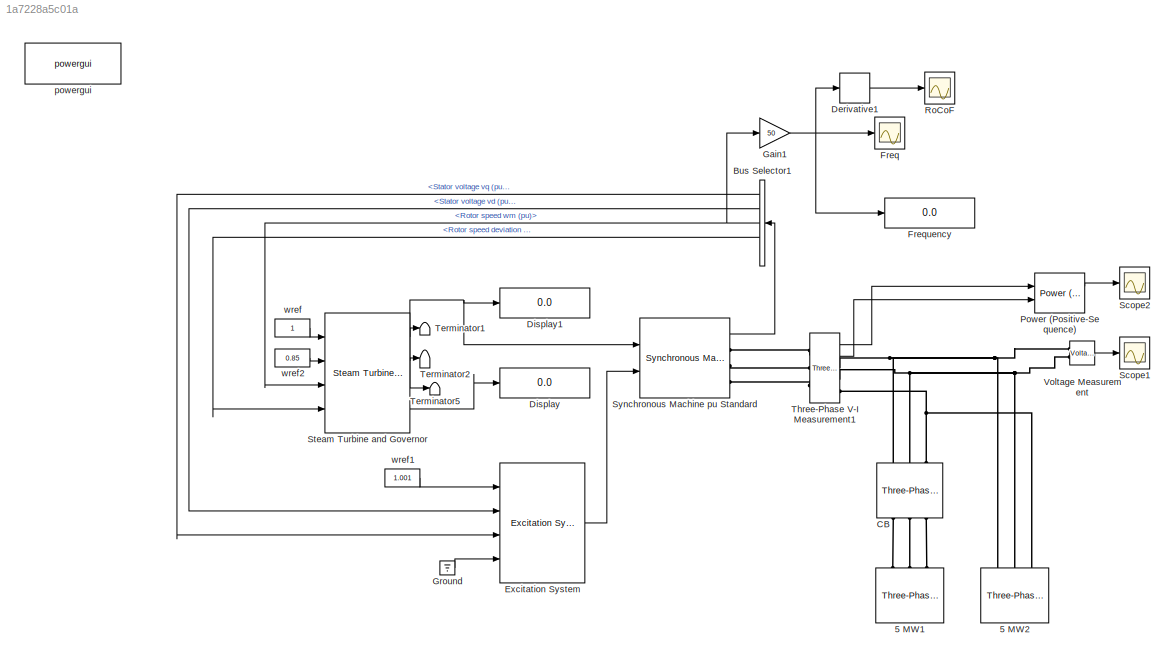
MODEL slx_1a7228a5c01a
KIND model
CONFIG AbsTol = auto
CONFIG FixedStep = auto
CONFIG MaxStep = auto
CONFIG MinStep = auto
CONFIG RelTol = 1e-3
CONFIG SampleTimeConstraint = Unconstrained
CONFIG Solver = VariableStepAuto
CONFIG SolverMode = Auto
CONFIG SolverName = VariableStepAuto
CONFIG StartTime = 0.0
CONFIG StopTime = 30
BLOCK [Reference] 5 MW1  REF=powerlib/Elements/Three-Phase
Parallel RLC Load
  AttributesFormatString = \n
  Ports = [0, 0, 0, 0, 0, 3]
  SourceBlock = powerlib/Elements/Three-Phase\nParallel RLC Load
  SourceType = Three-Phase Parallel RLC Load
BLOCK [Reference] 5 MW2  REF=powerlib/Elements/Three-Phase
Parallel RLC Load
  AttributesFormatString = \n
  Ports = [0, 0, 0, 0, 0, 3]
  SourceBlock = powerlib/Elements/Three-Phase\nParallel RLC Load
  SourceType = Three-Phase Parallel RLC Load
BLOCK [BusSelector] Bus Selector1
  OutputSignals = dq0 components.Stator voltage  vq (pu),dq0 components.Stator voltage  vd (pu),Mechanical.Rotor speed  wm  (pu),Mechanical.Rotor speed deviation  dw (pu),Output active power   Peo (pu)
  Ports = [1, 5]
BLOCK [Reference] CB  REF=powerlib/Elements/Three-Phase Breaker
  Ports = [0, 0, 0, 0, 0, 3, 3]
  SourceBlock = powerlib/Elements/Three-Phase Breaker
  SourceType = Three-Phase Breaker
BLOCK [Derivative] Derivative1
BLOCK [Display] Display
  Decimation = 1
  Ports = [1]
BLOCK [Display] Display1
  Decimation = 1
  Ports = [1]
BLOCK [Reference] Excitation System  REF=sps_avr/Excitation System
  Ports = [4, 1]
  SourceBlock = sps_avr/Excitation System
  SourceType = Excitation System
BLOCK [Scope] Freq
  Ports = [1]
  ScopeSpecificationString = Simulink.scopes.TimeScopeBlockCfg('CurrentConfiguration', extmgr.ConfigurationSet(extmgr.Configuration('Core','General UI',true),extmgr.Configuration('Core','Source UI',true),extmgr.Configuration('Sources','WiredSimulink',true,'DataLoggingVariableName','ScopeData1'),extmgr.Configuration('Visuals','Time Domain',true,'SerializedDisplays',{struct('MinYLimReal','48.4862','MaxYLimReal','50.16873','YLab...<+1467ch>
BLOCK [Display] Frequency
  Decimation = 1
  Ports = [1]
BLOCK [Gain] Gain1
  Gain = 50
  OutDataTypeStr = Inherit: Inherit via internal rule
  ParamDataTypeStr = Inherit: Inherit via internal rule
  SaturateOnIntegerOverflow = off
BLOCK [Ground] Ground
BLOCK [Reference] Power (Positive-Sequence)  REF=powerlib_meascontrol/Measurements/Power
(Positive-Sequence)
  Ports = [2, 2]
  SourceBlock = powerlib_meascontrol/Measurements/Power\n(Positive-Sequence)
  SourceType = Power (Positive-Sequence)
BLOCK [Scope] RoCoF
  Ports = [1]
  ScopeSpecificationString = Simulink.scopes.TimeScopeBlockCfg('CurrentConfiguration', extmgr.ConfigurationSet(extmgr.Configuration('Core','General UI',true),extmgr.Configuration('Core','Source UI',true),extmgr.Configuration('Sources','WiredSimulink',true,'DataLoggingVariableName','ScopeData3'),extmgr.Configuration('Visuals','Time Domain',true,'SerializedDisplays',{struct('MinYLimReal','-2.94156','MaxYLimReal','0.39121','YLab...<+1472ch>
BLOCK [Scope] Scope1
  Ports = [1]
  ScopeSpecificationString = Simulink.scopes.TimeScopeBlockCfg('CurrentConfiguration', extmgr.ConfigurationSet(extmgr.Configuration('Core','General UI',true),extmgr.Configuration('Core','Source UI',true),extmgr.Configuration('Sources','WiredSimulink',true),extmgr.Configuration('Visuals','Time Domain',true,'SerializedDisplays',{struct('MinYLimReal','970.81735','MaxYLimReal','978.22374','YLabelReal','','MinYLimMag','970.81735',...<+1397ch>
BLOCK [Scope] Scope2
  Ports = [1]
  ScopeSpecificationString = Simulink.scopes.TimeScopeBlockCfg('CurrentConfiguration', extmgr.ConfigurationSet(extmgr.Configuration('Core','General UI',true),extmgr.Configuration('Core','Source UI',true),extmgr.Configuration('Sources','WiredSimulink',true,'DataLoggingVariableName','ScopeData2'),extmgr.Configuration('Visuals','Time Domain',true,'SerializedDisplays',{struct('MinYLimReal','-10690268.94702','MaxYLimReal','9621242...<+1511ch>
BLOCK [Reference] Steam Turbine and Governor  REF=powerlib/Machines/Steam Turbine
and Governor
  Ports = [4, 4]
  SourceBlock = powerlib/Machines/Steam Turbine\nand Governor
  SourceType = Steam Turbine and Governor
BLOCK [Reference] Synchronous Machine pu Standard  REF=powerlib/Machines/Synchronous Machine
pu Standard
  Ports = [2, 1, 0, 0, 0, 0, 3]
  SourceBlock = powerlib/Machines/Synchronous Machine\npu Standard
  SourceType = Synchronous Machine
BLOCK [Terminator] Terminator1
BLOCK [Terminator] Terminator2
BLOCK [Terminator] Terminator5
BLOCK [Reference] Three-Phase V-I Measurement1  REF=powerlib/Measurements/Three-Phase
V-I Measurement
  Ports = [0, 2, 0, 0, 0, 3, 3]
  SourceBlock = powerlib/Measurements/Three-Phase\nV-I Measurement
  SourceType = Three-Phase VI Measurement
BLOCK [Reference] Voltage Measurement  REF=powerlib/Measurements/Voltage Measurement
  Ports = [0, 1, 0, 0, 0, 2]
  SourceBlock = powerlib/Measurements/Voltage Measurement
  SourceType = Voltage Measurement
  UserDataPersistent = on
BLOCK [Reference] powergui  REF=powerlib/powergui
  Ports = []
  Priority = 2
  SourceBlock = powerlib/powergui
  SourceType = PSB option menu block
BLOCK [Constant] wref
BLOCK [Constant] wref1
  Value = 1.001
BLOCK [Constant] wref2
  Value = 0.85
LINE Bus Selector1:1 -> Excitation System:3
LINE Bus Selector1:2 -> Excitation System:2
NET Bus Selector1:3 -> Gain1:1, Steam Turbine and Governor:3
LINE Bus Selector1:4 -> Steam Turbine and Governor:4
LINE Derivative1:1 -> RoCoF:1
LINE Excitation System:1 -> Synchronous Machine pu Standard:2
NET Gain1:1 -> Derivative1:1, Freq:1, Frequency:1
LINE Ground:1 -> Excitation System:4
LINE Power (Positive-Sequence):1 -> Scope2:1
LINE Steam Turbine and Governor:1 -> Terminator1:1
LINE Steam Turbine and Governor:2 -> Terminator2:1
NET Steam Turbine and Governor:3 -> Display1:1, Synchronous Machine pu Standard:1, Terminator5:1
LINE Steam Turbine and Governor:4 -> Display:1
LINE Synchronous Machine pu Standard:1 -> Bus Selector1:1
LINE Three-Phase V-I Measurement1:1 -> Power (Positive-Sequence):1
LINE Three-Phase V-I Measurement1:2 -> Power (Positive-Sequence):2
LINE Voltage Measurement:1 -> Scope1:1
LINE wref1:1 -> Excitation System:1
LINE wref2:1 -> Steam Turbine and Governor:2
LINE wref:1 -> Steam Turbine and Governor:1
PLINE 5 MW1:LConn1 -- CB:LConn1
PLINE 5 MW1:LConn2 -- CB:LConn2
PLINE 5 MW1:LConn3 -- CB:LConn3
PNET net1: 5 MW2:LConn1 -- CB:RConn1 -- Three-Phase V-I Measurement1:RConn1 -- Voltage Measurement:LConn1
PNET net2: 5 MW2:LConn2 -- CB:RConn2 -- Three-Phase V-I Measurement1:RConn2 -- Voltage Measurement:LConn2
PNET net3: 5 MW2:LConn3 -- CB:RConn3 -- Three-Phase V-I Measurement1:RConn3
PLINE Synchronous Machine pu Standard:RConn1 -- Three-Phase V-I Measurement1:LConn1
PLINE Synchronous Machine pu Standard:RConn2 -- Three-Phase V-I Measurement1:LConn2
PLINE Synchronous Machine pu Standard:RConn3 -- Three-Phase V-I Measurement1:LConn3
note: NET lines group one-source signal fan-out (src -> all destinations, sorted); 1:1 wires keep LINE; PNET lines group multi-terminal physical nets as a canonical sorted terminal list (undirected conserving connections); 2-terminal nets keep the pairwise PLINE form
